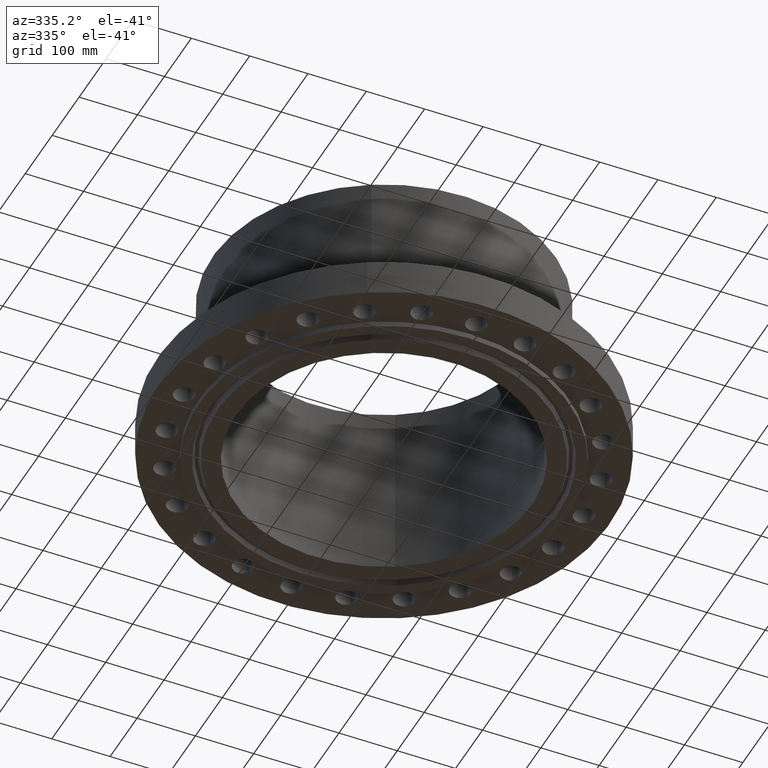
[diagram: clean part render]
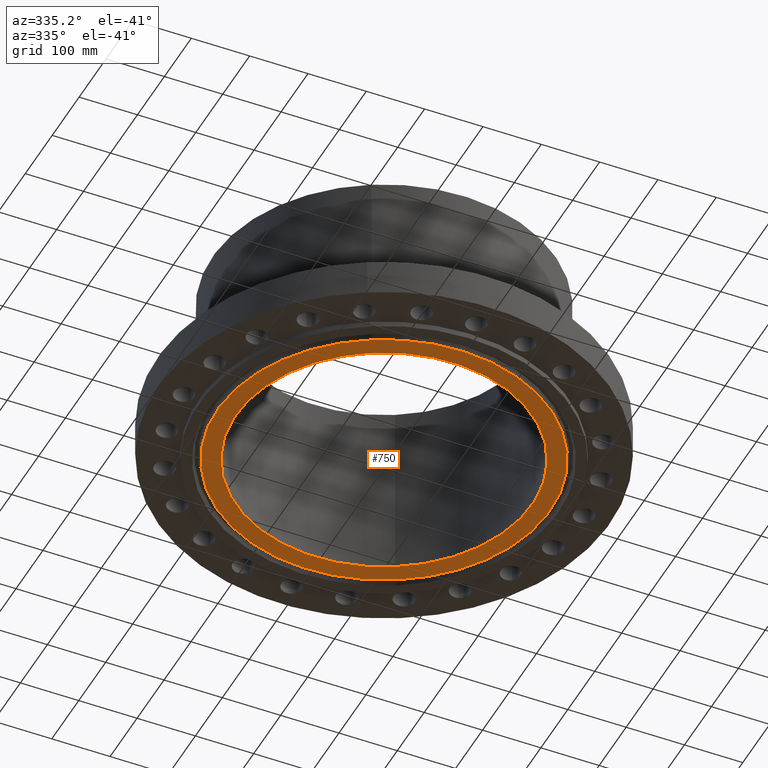
[diagram: same view with one face highlighted and labeled with its STEP entity id]
A machine part, auxiliary view. The second image highlights one B-rep face of the part: STEP entity #750.
In plain terms, the highlighted planar face has unit normal (0, 0, -1).
Its self-contained STEP definition (entity closure, byte-faithful):
#694=AXIS2_PLACEMENT_3D('Circle Axis2P3D',#692,#693,$) ;
#713=AXIS2_PLACEMENT_3D('Circle Axis2P3D',#711,#712,$) ;
#726=AXIS2_PLACEMENT_3D('Plane Axis2P3D',#723,#724,#725) ;
#730=AXIS2_PLACEMENT_3D('Circle Axis2P3D',#728,#729,$) ;
#739=AXIS2_PLACEMENT_3D('Circle Axis2P3D',#737,#738,$) ;
#689=CARTESIAN_POINT('Vertex',(4.79425538606,8.77582561894,-0.375000000002)) ;
#692=CARTESIAN_POINT('Axis2P3D Location',(0.,0.,-0.375000000002)) ;
#696=CARTESIAN_POINT('Vertex',(-4.79425538606,-8.77582561894,-0.375000000002)) ;
#711=CARTESIAN_POINT('Axis2P3D Location',(0.,0.,-0.375000000002)) ;
#723=CARTESIAN_POINT('Axis2P3D Location',(0.,10.,-0.375000000001)) ;
#728=CARTESIAN_POINT('Axis2P3D Location',(0.,0.,-0.375000000001)) ;
#732=CARTESIAN_POINT('Vertex',(-5.38610621347,-9.8592012916,-0.375000000001)) ;
#734=CARTESIAN_POINT('Vertex',(5.38610621347,9.8592012916,-0.375000000001)) ;
#737=CARTESIAN_POINT('Axis2P3D Location',(0.,0.,-0.375000000001)) ;
#693=DIRECTION('Axis2P3D Direction',(0.,0.,-0.0393700787402)) ;
#712=DIRECTION('Axis2P3D Direction',(0.,0.,-0.0393700787402)) ;
#724=DIRECTION('Axis2P3D Direction',(0.,0.,-0.0393700787402)) ;
#725=DIRECTION('Axis2P3D XDirection',(0.0393700787402,0.,0.)) ;
#729=DIRECTION('Axis2P3D Direction',(0.,0.,-0.0393700787402)) ;
#738=DIRECTION('Axis2P3D Direction',(0.,0.,-0.0393700787402)) ;
#743=ORIENTED_EDGE('',*,*,#736,.T.) ;
#744=ORIENTED_EDGE('',*,*,#741,.T.) ;
#747=ORIENTED_EDGE('',*,*,#698,.F.) ;
#748=ORIENTED_EDGE('',*,*,#715,.F.) ;
#749=FACE_BOUND('',#746,.T.) ;
#750=ADVANCED_FACE('PartBody',(#745,#749),#727,.T.) ;
#695=CIRCLE('generated circle',#694,10.) ;
#714=CIRCLE('generated circle',#713,10.) ;
#731=CIRCLE('generated circle',#730,11.2345) ;
#740=CIRCLE('generated circle',#739,11.2345) ;
#698=EDGE_CURVE('',#690,#697,#695,.T.) ;
#715=EDGE_CURVE('',#697,#690,#714,.T.) ;
#736=EDGE_CURVE('',#733,#735,#731,.T.) ;
#741=EDGE_CURVE('',#735,#733,#740,.T.) ;
#742=EDGE_LOOP('',(#743,#744)) ;
#746=EDGE_LOOP('',(#747,#748)) ;
#745=FACE_OUTER_BOUND('',#742,.T.) ;
#727=PLANE('',#726) ;
#690=VERTEX_POINT('',#689) ;
#697=VERTEX_POINT('',#696) ;
#733=VERTEX_POINT('',#732) ;
#735=VERTEX_POINT('',#734) ;